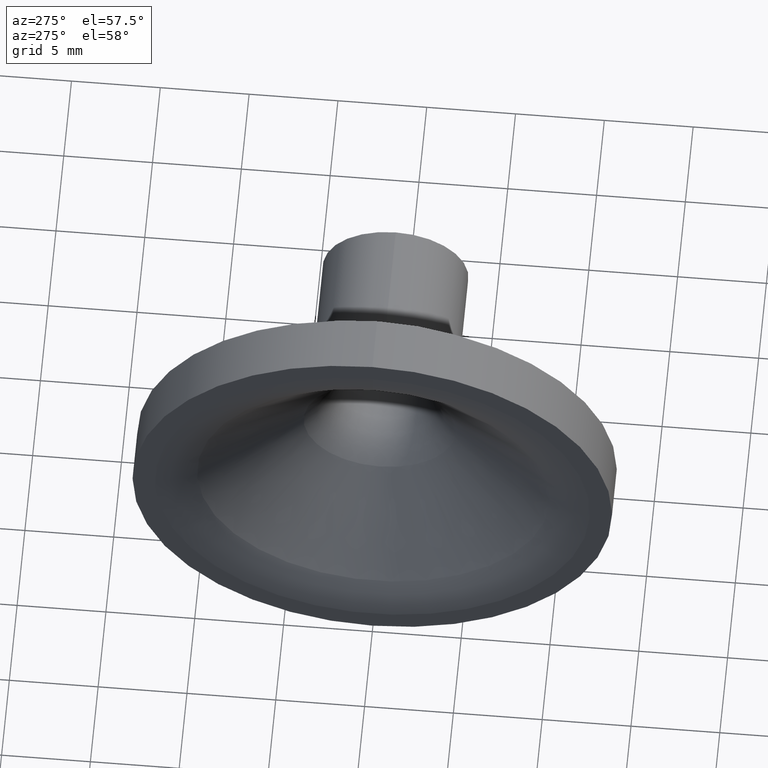
[diagram: clean part render]
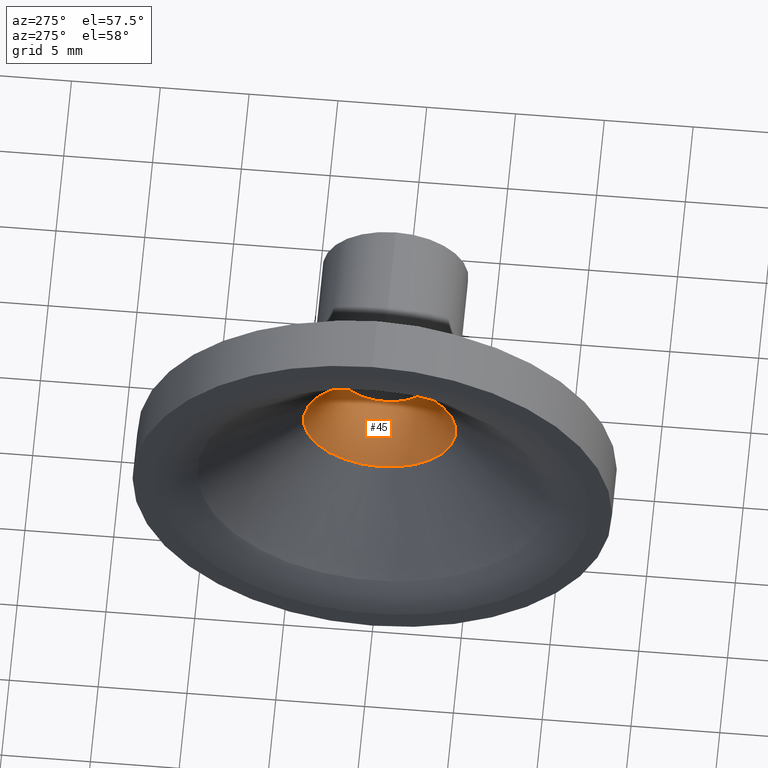
[diagram: same view with one face highlighted and labeled with its STEP entity id]
A machine part, auxiliary view. The second image highlights one B-rep face of the part: STEP entity #45.
In plain terms, the highlighted toroidal blend (fillet) surface has major radius 6.6 mm and minor (blend) radius 4 mm.
Its self-contained STEP definition (entity closure, byte-faithful):
#45 = ADVANCED_FACE( '', ( #96, #97 ), #98, .T. );
#96 = FACE_OUTER_BOUND( '', #155, .T. );
#97 = FACE_OUTER_BOUND( '', #156, .T. );
#98 = TOROIDAL_SURFACE( '', #157, 6.60000000000000, 4.00000000000000 );
#155 = EDGE_LOOP( '', ( #216 ) );
#156 = EDGE_LOOP( '', ( #217 ) );
#157 = AXIS2_PLACEMENT_3D( '', #218, #219, #220 );
#216 = ORIENTED_EDGE( '', *, *, #280, .T. );
#217 = ORIENTED_EDGE( '', *, *, #281, .F. );
#218 = CARTESIAN_POINT( '', ( -7.00000000000000, 0.000000000000000, 0.000000000000000 ) );
#219 = DIRECTION( '', ( -1.00000000000000, 0.000000000000000, 0.000000000000000 ) );
#220 = DIRECTION( '', ( 0.000000000000000, 0.000000000000000, 1.00000000000000 ) );
#280 = EDGE_CURVE( '', #312, #312, #313, .T. );
#281 = EDGE_CURVE( '', #314, #314, #315, .T. );
#312 = VERTEX_POINT( '', #351 );
#313 = CIRCLE( '', #352, 4.28873230233161 );
#314 = VERTEX_POINT( '', #353 );
#315 = CIRCLE( '', #354, 2.60000000000000 );
#351 = CARTESIAN_POINT( '', ( -10.2646656229566, 0.000000000000000, 4.28873230233161 ) );
#352 = AXIS2_PLACEMENT_3D( '', #391, #392, #393 );
#353 = CARTESIAN_POINT( '', ( -7.00000000000000, 0.000000000000000, 2.60000000000000 ) );
#354 = AXIS2_PLACEMENT_3D( '', #394, #395, #396 );
#391 = CARTESIAN_POINT( '', ( -10.2646656229566, 0.000000000000000, 0.000000000000000 ) );
#392 = DIRECTION( '', ( -1.00000000000000, 0.000000000000000, 0.000000000000000 ) );
#393 = DIRECTION( '', ( 0.000000000000000, 0.000000000000000, 1.00000000000000 ) );
#394 = CARTESIAN_POINT( '', ( -7.00000000000000, 0.000000000000000, 0.000000000000000 ) );
#395 = DIRECTION( '', ( -1.00000000000000, 0.000000000000000, 0.000000000000000 ) );
#396 = DIRECTION( '', ( 0.000000000000000, 0.000000000000000, 1.00000000000000 ) );